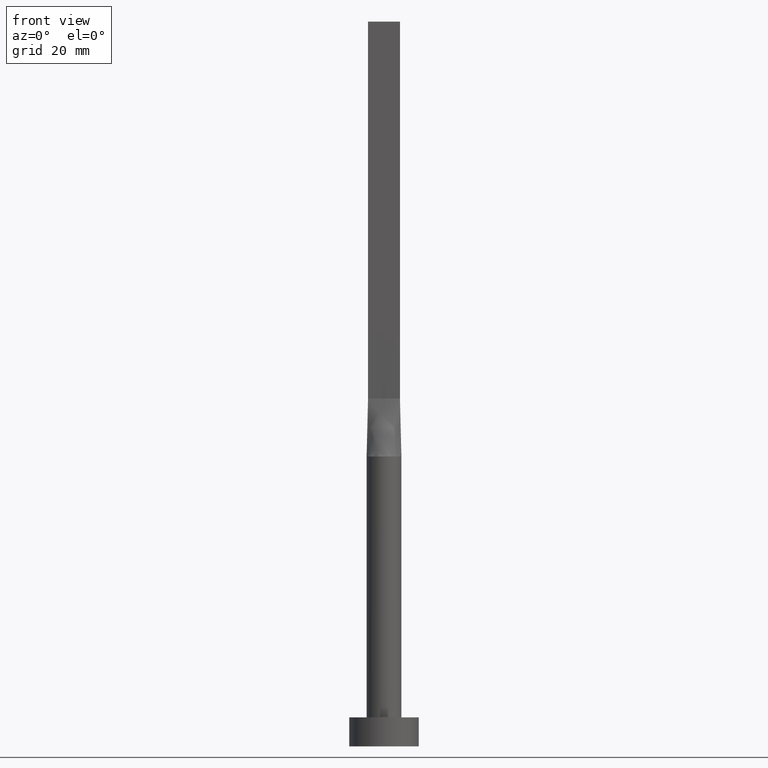
[diagram: clean part render]
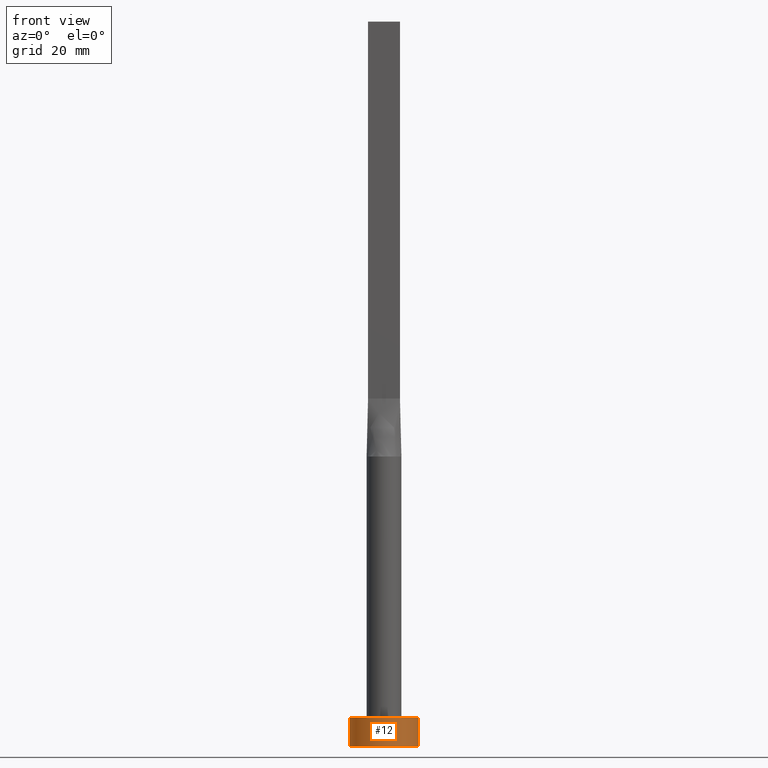
[diagram: same view with one face highlighted and labeled with its STEP entity id]
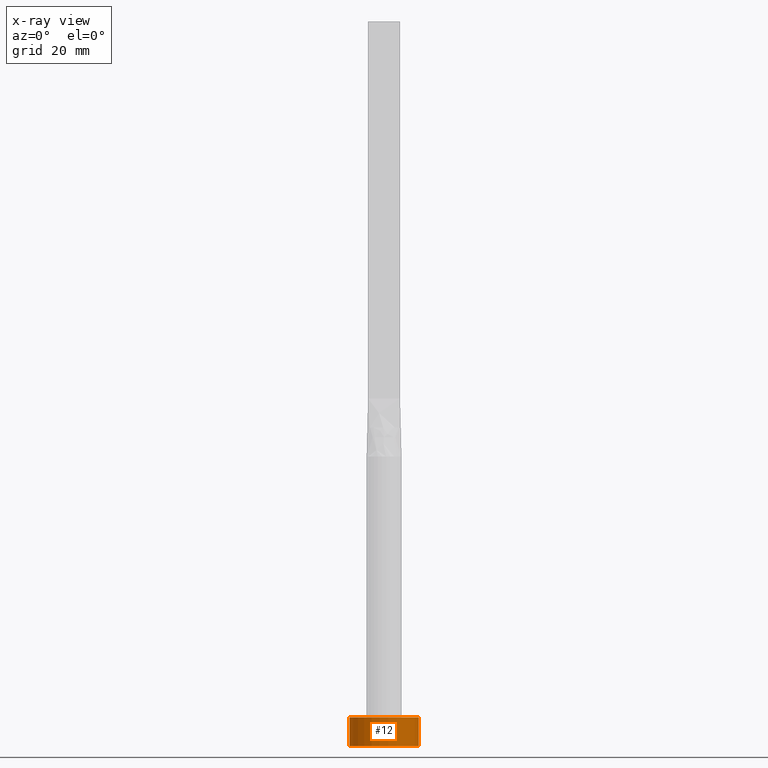
[diagram: x-ray of the same camera — body ghosted, the highlighted face saturated]
A machine part, front view. The second image highlights one B-rep face of the part: STEP entity #12.
The next image is the same camera in x-ray: the body ghosted, the highlighted face saturated — about 0% of this face is hidden behind the body in this view.
In plain terms, the highlighted cylindrical surface (edge-blend (fillet) strip) has radius 6 mm, axis along (-0, -0, -1).
Its self-contained STEP definition (entity closure, byte-faithful):
#12 = ADVANCED_FACE ( 'NONE', ( #306 ), #144, .T. ) ;
#13 = CIRCLE ( 'NONE', #415, 6.000000000000000888 ) ;
#28 = EDGE_LOOP ( 'NONE', ( #556, #156, #263, #458 ) ) ;
#59 = AXIS2_PLACEMENT_3D ( 'NONE', #78, #246, #527 ) ;
#63 = EDGE_CURVE ( 'NONE', #509, #465, #13, .T. ) ;
#78 = CARTESIAN_POINT ( 'NONE',  ( 0.000000000000000000, 0.000000000000000000, 0.000000000000000000 ) ) ;
#101 = EDGE_CURVE ( 'NONE', #404, #502, #317, .T. ) ;
#125 = DIRECTION ( 'NONE',  ( -0.000000000000000000, -0.000000000000000000, -1.000000000000000000 ) ) ;
#141 = CARTESIAN_POINT ( 'NONE',  ( -6.000000000000000888, 0.000000000000000000, 5.000000000000000000 ) ) ;
#144 = CYLINDRICAL_SURFACE ( 'NONE', #182, 6.000000000000000888 ) ;
#150 = CARTESIAN_POINT ( 'NONE',  ( -6.000000000000000888, 0.000000000000000000, 5.000000000000000000 ) ) ;
#156 = ORIENTED_EDGE ( 'NONE', *, *, #63, .F. ) ;
#182 = AXIS2_PLACEMENT_3D ( 'NONE', #461, #507, #462 ) ;
#214 = LINE ( 'NONE', #491, #420 ) ;
#218 = DIRECTION ( 'NONE',  ( 1.000000000000000000, 0.000000000000000000, 0.000000000000000000 ) ) ;
#238 = CARTESIAN_POINT ( 'NONE',  ( -6.000000000000000888, 0.000000000000000000, 0.000000000000000000 ) ) ;
#246 = DIRECTION ( 'NONE',  ( 0.000000000000000000, 0.000000000000000000, 1.000000000000000000 ) ) ;
#263 = ORIENTED_EDGE ( 'NONE', *, *, #326, .T. ) ;
#264 = DIRECTION ( 'NONE',  ( 0.000000000000000000, 0.000000000000000000, 1.000000000000000000 ) ) ;
#306 = FACE_OUTER_BOUND ( 'NONE', #28, .T. ) ;
#317 = CIRCLE ( 'NONE', #59, 6.000000000000000888 ) ;
#326 = EDGE_CURVE ( 'NONE', #509, #404, #533, .T. ) ;
#332 = CARTESIAN_POINT ( 'NONE',  ( 6.000000000000000888, 7.347880794884120722E-16, 0.000000000000000000 ) ) ;
#341 = DIRECTION ( 'NONE',  ( -0.000000000000000000, -0.000000000000000000, -1.000000000000000000 ) ) ;
#372 = VECTOR ( 'NONE', #341, 1000.000000000000000 ) ;
#404 = VERTEX_POINT ( 'NONE', #238 ) ;
#415 = AXIS2_PLACEMENT_3D ( 'NONE', #490, #264, #218 ) ;
#420 = VECTOR ( 'NONE', #125, 1000.000000000000000 ) ;
#436 = CARTESIAN_POINT ( 'NONE',  ( 6.000000000000000888, 7.347880794884120722E-16, 5.000000000000000000 ) ) ;
#458 = ORIENTED_EDGE ( 'NONE', *, *, #101, .T. ) ;
#461 = CARTESIAN_POINT ( 'NONE',  ( 0.000000000000000000, 0.000000000000000000, 5.000000000000000000 ) ) ;
#462 = DIRECTION ( 'NONE',  ( -1.000000000000000000, 0.000000000000000000, 0.000000000000000000 ) ) ;
#465 = VERTEX_POINT ( 'NONE', #436 ) ;
#490 = CARTESIAN_POINT ( 'NONE',  ( 0.000000000000000000, 0.000000000000000000, 5.000000000000000000 ) ) ;
#491 = CARTESIAN_POINT ( 'NONE',  ( 6.000000000000000888, 7.347880794884120722E-16, 5.000000000000000000 ) ) ;
#502 = VERTEX_POINT ( 'NONE', #332 ) ;
#507 = DIRECTION ( 'NONE',  ( -0.000000000000000000, -0.000000000000000000, -1.000000000000000000 ) ) ;
#509 = VERTEX_POINT ( 'NONE', #141 ) ;
#522 = EDGE_CURVE ( 'NONE', #465, #502, #214, .T. ) ;
#527 = DIRECTION ( 'NONE',  ( 1.000000000000000000, 0.000000000000000000, 0.000000000000000000 ) ) ;
#533 = LINE ( 'NONE', #150, #372 ) ;
#556 = ORIENTED_EDGE ( 'NONE', *, *, #522, .F. ) ;